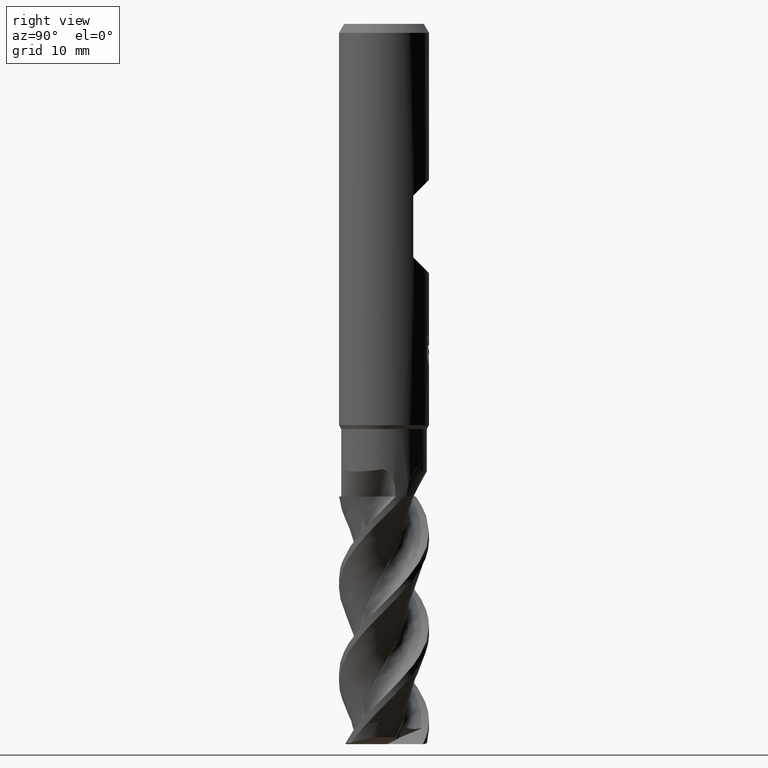
[diagram: clean part render]
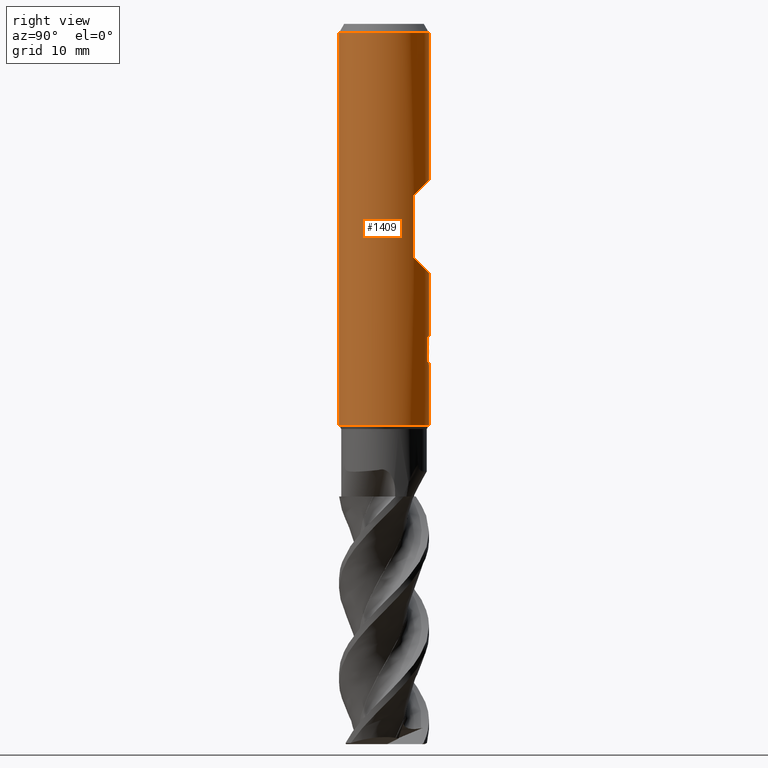
[diagram: same view with one face highlighted and labeled with its STEP entity id]
A machine part, right view. The second image highlights one B-rep face of the part: STEP entity #1409.
In plain terms, the highlighted cylindrical surface (partial cylindrical patch) has radius 4 mm, axis along (-0, -0, 1).
Its self-contained STEP definition (entity closure, byte-faithful):
#503=VERTEX_POINT('',#1444);
#535=EDGE_CURVE('',#1269,#607,#1479,.T.);
#551=EDGE_CURVE('',#973,#1037,#1498,.T.);
#553=EDGE_CURVE('',#629,#1001,#1500,.T.);
#577=EDGE_CURVE('',#853,#855,#1526,.T.);
#591=EDGE_CURVE('',#951,#965,#1541,.T.);
#603=EDGE_CURVE('',#665,#973,#1554,.T.);
#607=VERTEX_POINT('',#1559);
#615=VERTEX_POINT('',#1568);
#629=VERTEX_POINT('',#1586);
#665=VERTEX_POINT('',#1623);
#735=EDGE_CURVE('',#1083,#849,#1697,.T.);
#747=EDGE_CURVE('',#825,#1001,#1709,.T.);
#809=VERTEX_POINT('',#1777);
#825=VERTEX_POINT('',#1793);
#843=EDGE_CURVE('',#1037,#957,#1812,.T.);
#849=VERTEX_POINT('',#1819);
#853=VERTEX_POINT('',#1823);
#855=VERTEX_POINT('',#1825);
#893=EDGE_CURVE('',#809,#615,#1868,.T.);
#927=EDGE_CURVE('',#853,#1367,#1907,.T.);
#951=VERTEX_POINT('',#1932);
#955=EDGE_CURVE('',#503,#1083,#1936,.T.);
#957=VERTEX_POINT('',#1938);
#965=VERTEX_POINT('',#1947);
#973=VERTEX_POINT('',#1955);
#991=EDGE_CURVE('',#957,#951,#1976,.T.);
#1001=VERTEX_POINT('',#1987);
#1013=EDGE_CURVE('',#629,#607,#2000,.T.);
#1037=VERTEX_POINT('',#2025);
#1065=EDGE_CURVE('',#849,#809,#2055,.T.);
#1083=VERTEX_POINT('',#2075);
#1093=EDGE_CURVE('',#1367,#825,#2086,.T.);
#1269=VERTEX_POINT('',#2281);
#1293=EDGE_CURVE('',#965,#503,#2307,.T.);
#1365=EDGE_CURVE('',#615,#665,#2383,.T.);
#1367=VERTEX_POINT('',#2385);
#1375=EDGE_CURVE('',#855,#1269,#2393,.T.);
#1409=ADVANCED_FACE('',(#2432,#2433),#2434,.T.);
#1444=CARTESIAN_POINT('',(0.776488765473096,3.92390942773837,-30.1062783924577));
#1479=ELLIPSE('',#2755,5.65685424949238,4.0);
#1498=ELLIPSE('',#3165,4.45971372817144,4.0);
#1500=CIRCLE('',#3168,4.0);
#1526=ELLIPSE('',#3213,5.65685424949238,4.0);
#1541=ELLIPSE('',#3266,12.1919782934791,4.0);
#1554=B_SPLINE_CURVE_WITH_KNOTS('',3,(#3382,#3383,#3384,#3385,#3386,#3387,#3388,#3389,#3390,#3391,#3392,#3393,#3394,#3395),.UNSPECIFIED.,.F.,.F.,(4,2,2,2,2,2,4),(2.78814193532245,3.186140861262,3.58413978720155,3.9821387131411,4.37912318714916,4.77610766115722,5.1758320595667),.UNSPECIFIED.);
#1559=CARTESIAN_POINT('',(-4.89842541528951E-016,4.0,-13.85));
#1568=CARTESIAN_POINT('',(0.0199999374997686,3.99995,-28.5677883624539));
#1586=CARTESIAN_POINT('',(0.0,4.0,-0.799999999999997));
#1623=CARTESIAN_POINT('',(0.0199999374997714,3.99995,-28.9898146720462));
#1697=LINE('',#4623,#4624);
#1709=LINE('',#4656,#4657);
#1777=CARTESIAN_POINT('',(0.710597095545329,3.93637546072558,-27.6541002461062));
#1793=CARTESIAN_POINT('',(4.89842541528951E-016,-4.0,-35.654));
#1812=LINE('',#6276,#6277);
#1819=CARTESIAN_POINT('',(1.18861630964378,3.81931816800444,-28.1119151090958));
#1823=CARTESIAN_POINT('',(-4.89842541528951E-016,4.0,-22.15));
#1825=CARTESIAN_POINT('',(3.03973683071413,2.6,-20.75));
#1868=B_SPLINE_CURVE_WITH_KNOTS('',3,(#6422,#6423,#6424,#6425,#6426,#6427,#6428,#6429,#6430,#6431,#6432,#6433,#6434,#6435,#6436,#6437,#6438,#6439,#6440,#6441,#6442,#6443,#6444,#6445,#6446,#6447,#6448),.UNSPECIFIED.,.F.,.F.,(4,2,3,2,2,2,2,2,2,2,2,2,4),(-0.482399188008131,-0.241199594004066,0.0,0.241199594004064,0.482399188008128,0.724223029271464,0.9660468705348,1.20681941744947,1.44759196436414,1.68867461116738,1.92975725797061,2.17083990477384,2.41192255157708),.UNSPECIFIED.);
#1907=LINE('',#6608,#6609);
#1932=CARTESIAN_POINT('',(0.257866222563656,3.99167947251038,-30.3205847976549));
#1936=B_SPLINE_CURVE_WITH_KNOTS('',3,(#6839,#6840,#6841,#6842,#6843,#6844),.UNSPECIFIED.,.F.,.F.,(4,2,4),(7.16072728266531,7.71082854825732,8.26170500393967),.UNSPECIFIED.);
#1938=CARTESIAN_POINT('',(0.0199999374997759,3.99995,-30.3478244903379));
#1947=CARTESIAN_POINT('',(0.776488765473097,3.92390942773837,-28.8273236971509));
#1955=CARTESIAN_POINT('',(0.509439885356677,3.96742624420515,-28.925488521346));
#1976=B_SPLINE_CURVE_WITH_KNOTS('',3,(#6901,#6902,#6903,#6904,#6905,#6906,#6907,#6908,#6909,#6910,#6911,#6912,#6913,#6914),.UNSPECIFIED.,.F.,.F.,(4,2,2,2,2,2,4),(4.95733749207013,5.50838380122003,6.05950526412701,6.33506599558049,6.61062672703398,6.88567738507847,7.16072804312297),.UNSPECIFIED.);
#1987=CARTESIAN_POINT('',(4.89842541528951E-016,-4.0,-0.799999999999997));
#2000=LINE('',#7346,#7347);
#2025=CARTESIAN_POINT('',(0.019999937499785,3.99995,-29.1667905605459));
#2055=B_SPLINE_CURVE_WITH_KNOTS('',3,(#7515,#7516,#7517,#7518,#7519,#7520),.UNSPECIFIED.,.F.,.F.,(4,2,4),(0.550876474883806,1.10175294976761,1.65185423385294),.UNSPECIFIED.);
#2075=CARTESIAN_POINT('',(1.18861630964378,3.81931816800444,-29.6897773959038));
#2086=CIRCLE('',#8040,4.0);
#2281=CARTESIAN_POINT('',(3.03973683071413,2.6,-15.25));
#2307=LINE('',#10221,#10222);
#2383=LINE('',#10506,#10507);
#2385=CARTESIAN_POINT('',(0.0,4.0,-35.654));
#2393=LINE('',#10520,#10521);
#2432=FACE_OUTER_BOUND('',#10618,.T.);
#2433=FACE_BOUND('',#10619,.T.);
#2434=CYLINDRICAL_SURFACE('',#10620,4.0);
#2755=AXIS2_PLACEMENT_3D('',#10703,#10704,#10705);
#3165=AXIS2_PLACEMENT_3D('',#10729,#10730,#10731);
#3168=AXIS2_PLACEMENT_3D('',#10732,#10733,#10734);
#3213=AXIS2_PLACEMENT_3D('',#10776,#10777,#10778);
#3266=AXIS2_PLACEMENT_3D('',#10790,#10791,#10792);
#3382=CARTESIAN_POINT('',(-0.839639930120254,3.91088286551102,-27.5407546609877));
#3383=CARTESIAN_POINT('',(-0.893456726120442,3.89932877080168,-27.6703186730283));
#3384=CARTESIAN_POINT('',(-0.920085402440226,3.89274233057062,-27.8114761638438));
#3385=CARTESIAN_POINT('',(-0.920085402440226,3.89274233057062,-28.0768087811369));
#3386=CARTESIAN_POINT('',(-0.893456726120442,3.89932877080168,-28.2179662719524));
#3387=CARTESIAN_POINT('',(-0.785823134120091,3.92243696022038,-28.4770942960337));
#3388=CARTESIAN_POINT('',(-0.704842888749748,3.9385421061724,-28.5951120576966));
#3389=CARTESIAN_POINT('',(-0.518436722554853,3.96737890598685,-28.7812390238667));
#3390=CARTESIAN_POINT('',(-0.400501666076801,3.9820125668256,-28.8619920847227));
#3391=CARTESIAN_POINT('',(-0.14167055177908,3.99959436951154,-28.9692571060256));
#3392=CARTESIAN_POINT('',(-0.000740255857727135,4.00218817566361,-28.9957442320818));
#3393=CARTESIAN_POINT('',(0.264685784501636,3.99345648827941,-28.9957442320818));
#3394=CARTESIAN_POINT('',(0.406040230589981,3.98148410418381,-28.9689287653295));
#3395=CARTESIAN_POINT('',(0.535570405748399,3.96398339306391,-28.9150217577715));
#4623=CARTESIAN_POINT('',(1.18861630964378,3.81931816800444,-28.9008462524998));
#4624=VECTOR('',#10921,1.0);
#4656=CARTESIAN_POINT('',(4.89842541528951E-016,-4.0,-18.227));
#4657=VECTOR('',#10927,1.0);
#6276=CARTESIAN_POINT('',(0.019999937499785,3.99995,-29.0013154291933));
#6277=VECTOR('',#11012,1.0);
#6422=CARTESIAN_POINT('',(0.591270698674172,3.95605851332982,-27.4884678539585));
#6423=CARTESIAN_POINT('',(0.647769671790733,3.94761420261085,-27.5450425646682));
#6424=CARTESIAN_POINT('',(0.696841080653836,3.93897337331235,-27.6167086408797));
#6425=CARTESIAN_POINT('',(0.76202381111568,3.92688406421869,-27.7739796971962));
#6426=CARTESIAN_POINT('',(0.778124477850712,3.92358538800541,-27.8596005723627));
#6427=CARTESIAN_POINT('',(0.778124477850712,3.92358538800541,-27.9400004370307));
#6428=CARTESIAN_POINT('',(0.778124477850712,3.92358538800541,-28.0204003016988));
#6429=CARTESIAN_POINT('',(0.762023811115681,3.92688406421869,-28.1060211768652));
#6430=CARTESIAN_POINT('',(0.696841080653838,3.93897337331235,-28.2632922331818));
#6431=CARTESIAN_POINT('',(0.647769671790732,3.94761420261085,-28.3349583093933));
#6432=CARTESIAN_POINT('',(0.534625500895564,3.96452467872,-28.4482541514908));
#6433=CARTESIAN_POINT('',(0.462882720090971,3.9739143868376,-28.4974616883065));
#6434=CARTESIAN_POINT('',(0.305424596762447,3.98910663956121,-28.5628359608539));
#6435=CARTESIAN_POINT('',(0.219692000121854,3.99477572164147,-28.5789920844591));
#6436=CARTESIAN_POINT('',(0.0589238801196738,4.00037113842804,-28.5789920844591));
#6437=CARTESIAN_POINT('',(-0.0266466636037332,4.00068563850923,-28.5629614258835));
#6438=CARTESIAN_POINT('',(-0.184016632015548,3.99654019148199,-28.4977975849122));
#6439=CARTESIAN_POINT('',(-0.255821268258577,3.99221601723601,-28.4486684219598));
#6440=CARTESIAN_POINT('',(-0.369270011978719,3.98332539991772,-28.3353167161151));
#6441=CARTESIAN_POINT('',(-0.418478431506147,3.97818494377544,-28.2634898415134));
#6442=CARTESIAN_POINT('',(-0.483775177561257,3.97077337948459,-28.1060164516185));
#6443=CARTESIAN_POINT('',(-0.499858817006064,3.96864475143106,-28.0203613192985));
#6444=CARTESIAN_POINT('',(-0.499858817006064,3.96864475143106,-27.859639554763));
#6445=CARTESIAN_POINT('',(-0.483775177561257,3.97077337948459,-27.773984422443));
#6446=CARTESIAN_POINT('',(-0.418478431506147,3.97818494377544,-27.6165110325481));
#6447=CARTESIAN_POINT('',(-0.36927001197872,3.98332539991772,-27.5446841579463));
#6448=CARTESIAN_POINT('',(-0.31250913491621,3.98777356937351,-27.4879718310461));
#6608=CARTESIAN_POINT('',(-4.89842541528951E-016,4.0,-18.227));
#6609=VECTOR('',#11117,1.0);
#6839=CARTESIAN_POINT('',(0.530824908337292,3.96462166122932,-30.2374887547648));
#6840=CARTESIAN_POINT('',(0.708916603241935,3.94077688717912,-30.1634036008586));
#6841=CARTESIAN_POINT('',(0.870638009471879,3.90632168476773,-30.052274098436));
#6842=CARTESIAN_POINT('',(1.12599239369796,3.84051425435027,-29.7970348582084));
#6843=CARTESIAN_POINT('',(1.23716094021759,3.80468013710735,-29.6353001630698));
#6844=CARTESIAN_POINT('',(1.31129922066112,3.77895413492855,-29.4571999275423));
#6901=CARTESIAN_POINT('',(-1.36175335856805,3.76106737382204,-29.45712138195));
#6902=CARTESIAN_POINT('',(-1.28766978639953,3.78789046737408,-29.6351198068732));
#6903=CARTESIAN_POINT('',(-1.17663690404377,3.82530889808831,-29.7966946628473));
#6904=CARTESIAN_POINT('',(-0.921579810523459,3.89463194488682,-30.0518711912456));
#6905=CARTESIAN_POINT('',(-0.759922009067669,3.93127665729478,-30.163076166199));
#6906=CARTESIAN_POINT('',(-0.492720561797991,3.97055800265641,-30.2743575090144));
#6907=CARTESIAN_POINT('',(-0.399594556265919,3.98110484898349,-30.3025560284185));
#6908=CARTESIAN_POINT('',(-0.211766791343593,3.99550077638431,-30.3396480164513));
#6909=CARTESIAN_POINT('',(-0.117062254808857,3.99934163433615,-30.3485306122803));
#6910=CARTESIAN_POINT('',(0.0664712296567955,4.00049840013219,-30.3485306122803));
#6911=CARTESIAN_POINT('',(0.161048385078536,3.99786226561239,-30.3396802751831));
#6912=CARTESIAN_POINT('',(0.348701139326367,3.98588093055625,-30.3026756834131));
#6913=CARTESIAN_POINT('',(0.441779296933124,3.97654402221767,-30.2745317208671));
#6914=CARTESIAN_POINT('',(0.530825151871004,3.96462162862247,-30.2374891406098));
#7346=CARTESIAN_POINT('',(-4.89842541528951E-016,4.0,-18.227));
#7347=VECTOR('',#11196,1.0);
#7515=CARTESIAN_POINT('',(1.31129922774667,3.77895413246985,-28.3444925897826));
#7516=CARTESIAN_POINT('',(1.23716094470124,3.80468013570727,-28.1663923480887));
#7517=CARTESIAN_POINT('',(1.12599239428804,3.84051425433622,-28.0046576473589));
#7518=CARTESIAN_POINT('',(0.870638001198906,3.90632168676194,-27.7494183984497));
#7519=CARTESIAN_POINT('',(0.708916589443108,3.94077688993501,-27.638288892285));
#7520=CARTESIAN_POINT('',(0.530824888471886,3.9646216638891,-27.5642037358949));
#8040=AXIS2_PLACEMENT_3D('',#11267,#11268,#11269);
#10221=CARTESIAN_POINT('',(0.776488765473097,3.92390942773837,-29.4668010448043));
#10222=VECTOR('',#11535,1.0);
#10506=CARTESIAN_POINT('',(0.019999937499785,3.99995,-29.0013154291933));
#10507=VECTOR('',#11621,1.0);
#10520=CARTESIAN_POINT('',(3.03973683071413,2.6,-18.0));
#10521=VECTOR('',#11628,1.0);
#10618=EDGE_LOOP('',(#11677,#11678,#11679,#11680,#11681,#11682,#11683,#11684));
#10619=EDGE_LOOP('',(#11685,#11686,#11687,#11688,#11689,#11690,#11691,#11692,#11693,#11694,#11695));
#10620=AXIS2_PLACEMENT_3D('',#11696,#11697,#11698);
#10703=CARTESIAN_POINT('',(0.0,0.0,-17.85));
#10704=DIRECTION('',(0.0,-0.707106781186547,0.707106781186548));
#10705=DIRECTION('',(0.0,0.707106781186548,0.707106781186547));
#10729=CARTESIAN_POINT('',(0.0,0.0,-29.1766508625578));
#10730=DIRECTION('',(-0.442195774284071,0.0,0.896918556617774));
#10731=DIRECTION('',(0.896918556617774,-0.0,0.442195774284071));
#10732=CARTESIAN_POINT('',(0.0,0.0,-0.799999999999997));
#10733=DIRECTION('',(0.0,0.0,-1.0));
#10734=DIRECTION('',(0.0,1.0,0.0));
#10776=CARTESIAN_POINT('',(0.0,0.0,-18.15));
#10777=DIRECTION('',(0.0,-0.707106781186548,-0.707106781186548));
#10778=DIRECTION('',(0.0,0.707106781186547,-0.707106781186547));
#10790=CARTESIAN_POINT('',(0.0,0.0,-31.0630546431191));
#10791=DIRECTION('',(0.944648353914092,0.0,-0.328084573619969));
#10792=DIRECTION('',(0.328084573619968,-0.0,0.944648353914092));
#10921=DIRECTION('',(-0.0,-0.0,1.0));
#10927=DIRECTION('',(-0.0,-0.0,1.0));
#11012=DIRECTION('',(0.0,0.0,-1.0));
#11117=DIRECTION('',(0.0,0.0,-1.0));
#11196=DIRECTION('',(0.0,0.0,-1.0));
#11267=CARTESIAN_POINT('',(0.0,0.0,-35.654));
#11268=DIRECTION('',(0.0,0.0,-1.0));
#11269=DIRECTION('',(0.0,1.0,0.0));
#11535=DIRECTION('',(0.0,0.0,-1.0));
#11621=DIRECTION('',(0.0,0.0,-1.0));
#11628=DIRECTION('',(-0.0,-0.0,1.0));
#11677=ORIENTED_EDGE('',*,*,#1013,.F.);
#11678=ORIENTED_EDGE('',*,*,#553,.T.);
#11679=ORIENTED_EDGE('',*,*,#747,.F.);
#11680=ORIENTED_EDGE('',*,*,#1093,.F.);
#11681=ORIENTED_EDGE('',*,*,#927,.F.);
#11682=ORIENTED_EDGE('',*,*,#577,.T.);
#11683=ORIENTED_EDGE('',*,*,#1375,.T.);
#11684=ORIENTED_EDGE('',*,*,#535,.T.);
#11685=ORIENTED_EDGE('',*,*,#551,.T.);
#11686=ORIENTED_EDGE('',*,*,#843,.T.);
#11687=ORIENTED_EDGE('',*,*,#991,.T.);
#11688=ORIENTED_EDGE('',*,*,#591,.T.);
#11689=ORIENTED_EDGE('',*,*,#1293,.T.);
#11690=ORIENTED_EDGE('',*,*,#955,.T.);
#11691=ORIENTED_EDGE('',*,*,#735,.T.);
#11692=ORIENTED_EDGE('',*,*,#1065,.T.);
#11693=ORIENTED_EDGE('',*,*,#893,.T.);
#11694=ORIENTED_EDGE('',*,*,#1365,.T.);
#11695=ORIENTED_EDGE('',*,*,#603,.T.);
#11696=CARTESIAN_POINT('',(0.0,0.0,-18.227));
#11697=DIRECTION('',(-0.0,-0.0,1.0));
#11698=DIRECTION('',(0.0,1.0,0.0));